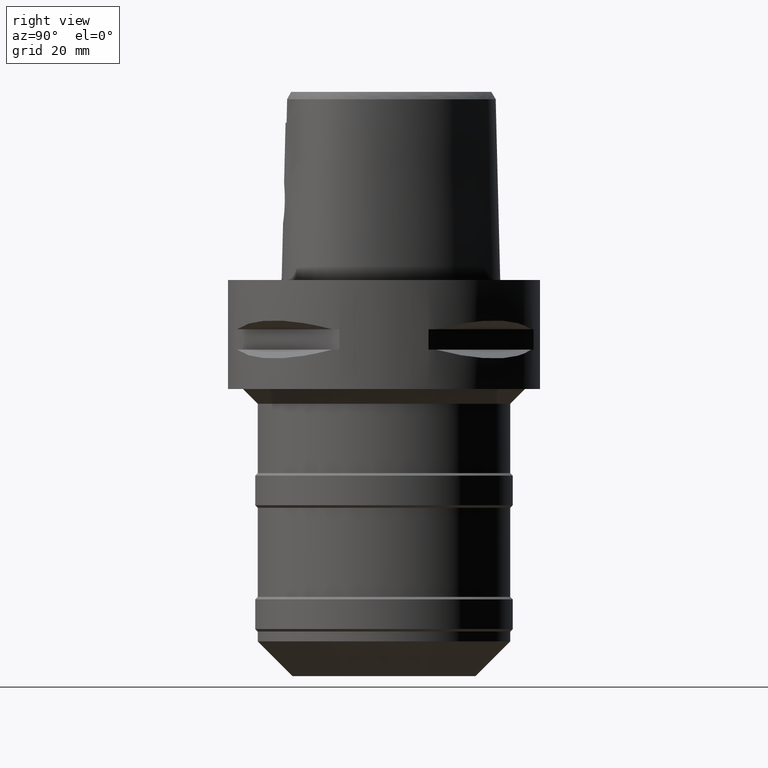
[diagram: clean part render]
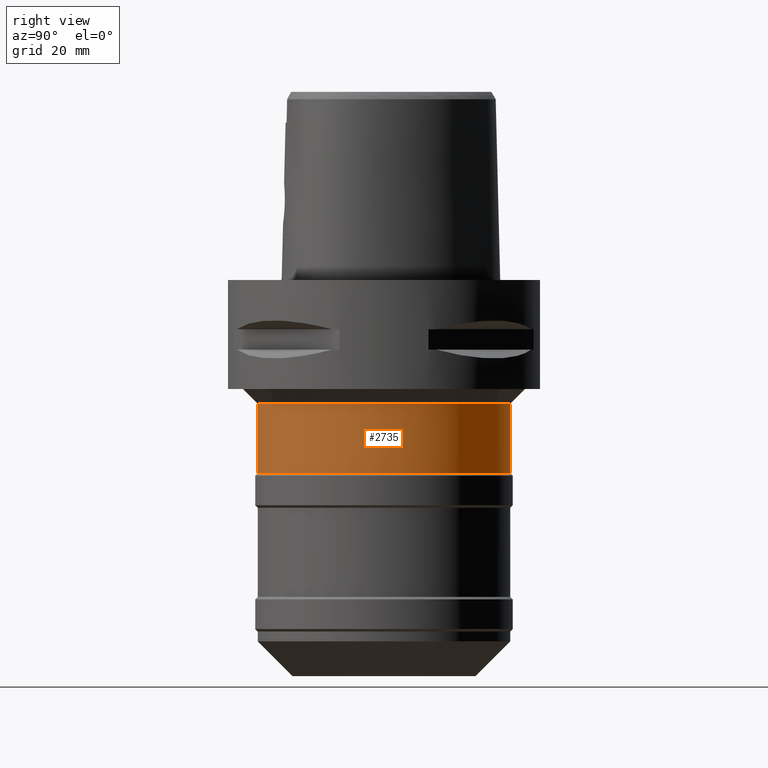
[diagram: same view with one face highlighted and labeled with its STEP entity id]
A machine part, right view. The second image highlights one B-rep face of the part: STEP entity #2735.
In plain terms, the highlighted cylindrical surface (partial cylindrical patch) has radius 25.5 mm, axis along (0, 0, -1).
Its self-contained STEP definition (entity closure, byte-faithful):
#569=CARTESIAN_POINT('',(0.E0,0.E0,-2.5E1));
#570=DIRECTION('',(0.E0,0.E0,-1.E0));
#571=DIRECTION('',(0.E0,1.E0,0.E0));
#572=AXIS2_PLACEMENT_3D('',#569,#570,#571);
#577=DIRECTION('',(0.E0,0.E0,-1.E0));
#578=VECTOR('',#577,1.4E1);
#579=CARTESIAN_POINT('',(0.E0,2.55E1,-2.5E1));
#580=LINE('',#579,#578);
#584=DIRECTION('',(0.E0,0.E0,-1.E0));
#585=VECTOR('',#584,1.4E1);
#586=CARTESIAN_POINT('',(0.E0,-2.55E1,-2.5E1));
#587=LINE('',#586,#585);
#629=CARTESIAN_POINT('',(0.E0,0.E0,-3.9E1));
#630=DIRECTION('',(0.E0,0.E0,1.E0));
#631=DIRECTION('',(0.E0,-1.E0,0.E0));
#632=AXIS2_PLACEMENT_3D('',#629,#630,#631);
#1782=CARTESIAN_POINT('',(0.E0,2.55E1,-2.5E1));
#1783=VERTEX_POINT('',#1782);
#1784=CARTESIAN_POINT('',(0.E0,-2.55E1,-2.5E1));
#1785=VERTEX_POINT('',#1784);
#1786=CARTESIAN_POINT('',(0.E0,2.55E1,-3.9E1));
#1787=VERTEX_POINT('',#1786);
#1788=CARTESIAN_POINT('',(0.E0,-2.55E1,-3.9E1));
#1789=VERTEX_POINT('',#1788);
#2721=CARTESIAN_POINT('',(0.E0,1.273632671113E-14,4.E0));
#2722=DIRECTION('',(0.E0,0.E0,-1.E0));
#2723=DIRECTION('',(0.E0,-1.E0,0.E0));
#2724=AXIS2_PLACEMENT_3D('',#2721,#2722,#2723);
#2725=CYLINDRICAL_SURFACE('',#2724,2.55E1);
#2727=ORIENTED_EDGE('',*,*,#2726,.T.);
#2729=ORIENTED_EDGE('',*,*,#2728,.F.);
#2731=ORIENTED_EDGE('',*,*,#2730,.F.);
#2732=ORIENTED_EDGE('',*,*,#2714,.F.);
#2733=EDGE_LOOP('',(#2727,#2729,#2731,#2732));
#2734=FACE_OUTER_BOUND('',#2733,.F.);
#573=CIRCLE('',#572,2.55E1);
#633=CIRCLE('',#632,2.55E1);
#2714=EDGE_CURVE('',#1783,#1785,#573,.T.);
#2726=EDGE_CURVE('',#1783,#1787,#580,.T.);
#2728=EDGE_CURVE('',#1789,#1787,#633,.T.);
#2730=EDGE_CURVE('',#1785,#1789,#587,.T.);
#2735=ADVANCED_FACE('',(#2734),#2725,.T.);